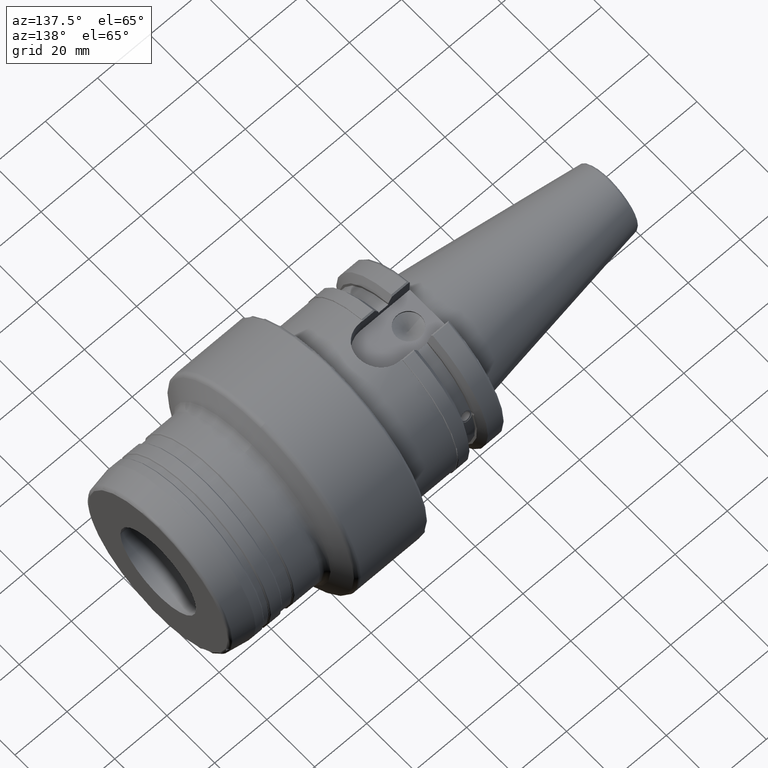
[diagram: clean part render]
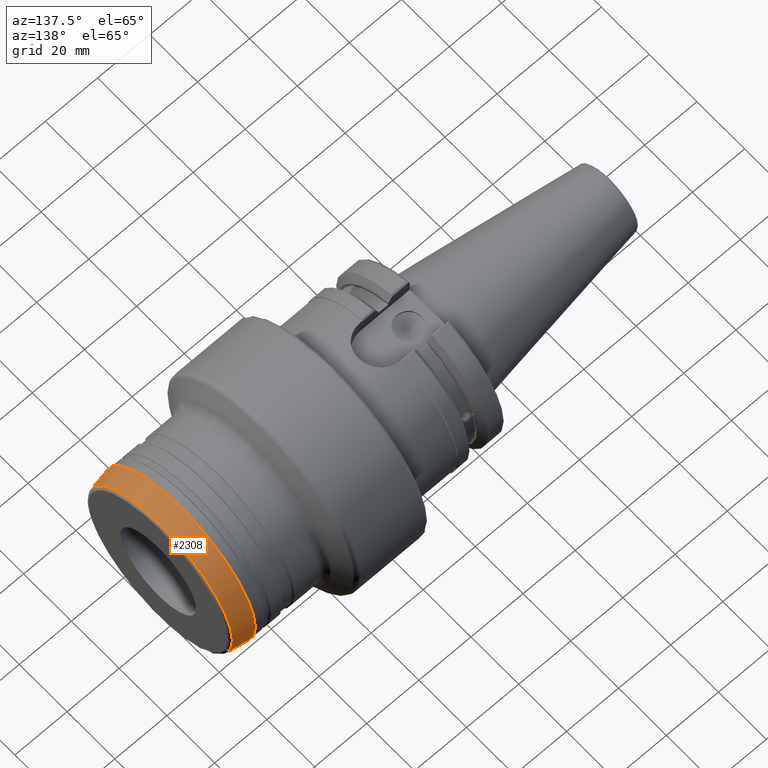
[diagram: same view with one face highlighted and labeled with its STEP entity id]
A machine part, auxiliary view. The second image highlights one B-rep face of the part: STEP entity #2308.
In plain terms, the highlighted conical surface has half-angle 10 deg.
Its self-contained STEP definition (entity closure, byte-faithful):
#223=FACE_OUTER_BOUND('',#344,.T.);
#344=EDGE_LOOP('',(#1727,#1728,#1729,#1730,#1731,#1732,#1733,#1734));
#467=LINE('',#3898,#576);
#576=VECTOR('',#3035,30.75);
#759=CIRCLE('',#2540,31.4848077530122);
#760=CIRCLE('',#2541,31.4848077530122);
#762=CIRCLE('',#2543,31.4848077530122);
#763=CIRCLE('',#2545,30.1457081218349);
#764=CIRCLE('',#2546,30.1457081218349);
#765=CIRCLE('',#2547,30.1457081218349);
#960=VERTEX_POINT('',#3885);
#961=VERTEX_POINT('',#3886);
#962=VERTEX_POINT('',#3888);
#963=VERTEX_POINT('',#3893);
#964=VERTEX_POINT('',#3894);
#965=VERTEX_POINT('',#3896);
#1252=EDGE_CURVE('',#960,#961,#759,.T.);
#1253=EDGE_CURVE('',#961,#962,#760,.T.);
#1255=EDGE_CURVE('',#962,#960,#762,.T.);
#1256=EDGE_CURVE('',#963,#964,#763,.T.);
#1257=EDGE_CURVE('',#965,#963,#764,.T.);
#1258=EDGE_CURVE('',#965,#961,#467,.T.);
#1259=EDGE_CURVE('',#964,#965,#765,.T.);
#1727=ORIENTED_EDGE('',*,*,#1256,.F.);
#1728=ORIENTED_EDGE('',*,*,#1257,.F.);
#1729=ORIENTED_EDGE('',*,*,#1258,.T.);
#1730=ORIENTED_EDGE('',*,*,#1252,.F.);
#1731=ORIENTED_EDGE('',*,*,#1255,.F.);
#1732=ORIENTED_EDGE('',*,*,#1253,.F.);
#1733=ORIENTED_EDGE('',*,*,#1258,.F.);
#1734=ORIENTED_EDGE('',*,*,#1259,.F.);
#2266=CONICAL_SURFACE('',#2544,30.75,0.174532925199432);
#2308=ADVANCED_FACE('',(#223),#2266,.T.);
#2540=AXIS2_PLACEMENT_3D('',#3887,#3021,#3022);
#2541=AXIS2_PLACEMENT_3D('',#3889,#3023,#3024);
#2543=AXIS2_PLACEMENT_3D('',#3891,#3027,#3028);
#2544=AXIS2_PLACEMENT_3D('',#3892,#3029,#3030);
#2545=AXIS2_PLACEMENT_3D('',#3895,#3031,#3032);
#2546=AXIS2_PLACEMENT_3D('',#3897,#3033,#3034);
#2547=AXIS2_PLACEMENT_3D('',#3899,#3036,#3037);
#3021=DIRECTION('center_axis',(-1.,0.,0.));
#3022=DIRECTION('ref_axis',(0.,-1.,3.06161699786838E-17));
#3023=DIRECTION('center_axis',(-1.,0.,0.));
#3024=DIRECTION('ref_axis',(0.,-1.,3.06161699786838E-17));
#3027=DIRECTION('center_axis',(-1.,0.,0.));
#3028=DIRECTION('ref_axis',(0.,-1.,3.06161699786838E-17));
#3029=DIRECTION('center_axis',(-1.,0.,0.));
#3030=DIRECTION('ref_axis',(0.,1.,0.));
#3031=DIRECTION('center_axis',(1.,0.,0.));
#3032=DIRECTION('ref_axis',(0.,-1.,3.06161699786839E-17));
#3033=DIRECTION('center_axis',(1.,0.,0.));
#3034=DIRECTION('ref_axis',(0.,-1.,3.06161699786839E-17));
#3035=DIRECTION('',(-0.984807753012208,-0.17364817766693,-2.12657684957577E-17));
#3036=DIRECTION('center_axis',(1.,0.,0.));
#3037=DIRECTION('ref_axis',(0.,-1.,3.06161699786839E-17));
#3885=CARTESIAN_POINT('',(96.5792367847144,31.4848077530122,-9.63944225912404E-15));
#3886=CARTESIAN_POINT('',(96.5792367847144,-31.4848077530122,-3.85577690364962E-15));
#3887=CARTESIAN_POINT('Origin',(96.5792367847144,0.,-4.81972112956202E-15));
#3888=CARTESIAN_POINT('',(96.5792367847144,-3.85577690364962E-15,31.4848077530122));
#3889=CARTESIAN_POINT('Origin',(96.5792367847144,0.,-4.81972112956202E-15));
#3891=CARTESIAN_POINT('Origin',(96.5792367847144,0.,-4.81972112956202E-15));
#3892=CARTESIAN_POINT('Origin',(100.746538635287,0.,0.));
#3893=CARTESIAN_POINT('',(104.173648177667,30.1457081218349,-1.84589224797178E-15));
#3894=CARTESIAN_POINT('',(104.173648177667,-3.69178449594355E-15,30.1457081218349));
#3895=CARTESIAN_POINT('Origin',(104.173648177667,0.,-4.61473061992944E-15));
#3896=CARTESIAN_POINT('',(104.173648177667,-30.1457081218349,-3.69178449594355E-15));
#3897=CARTESIAN_POINT('Origin',(104.173648177667,0.,-4.61473061992944E-15));
#3898=CARTESIAN_POINT('',(100.746538635287,-30.75,-3.76578890737811E-15));
#3899=CARTESIAN_POINT('Origin',(104.173648177667,0.,-4.61473061992944E-15));